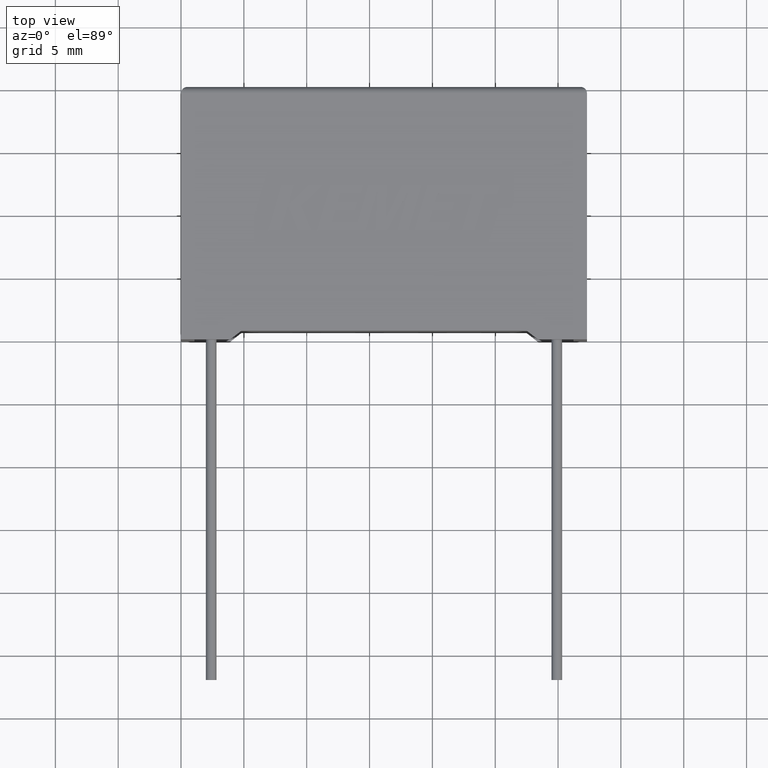
[diagram: clean part render]
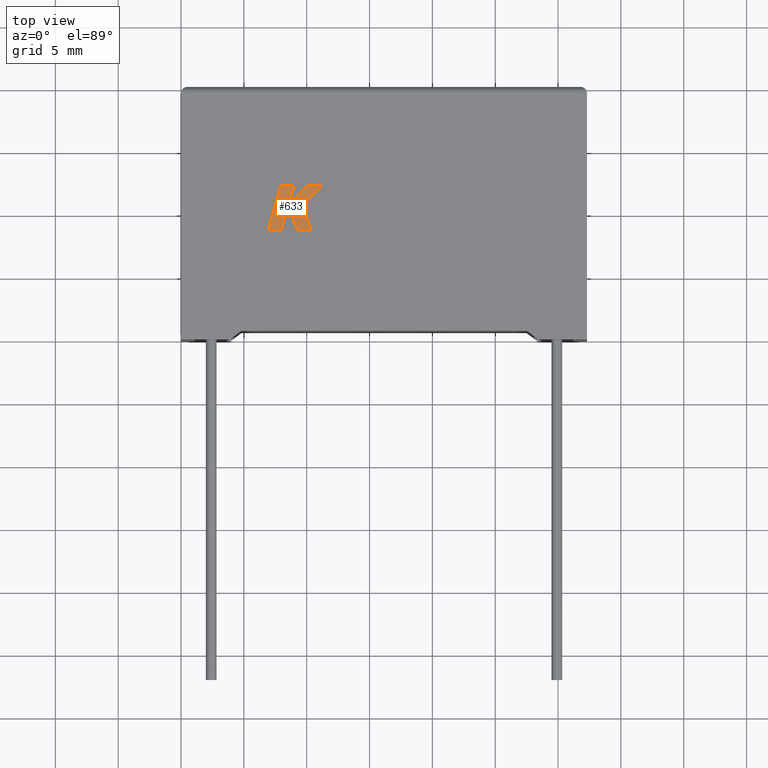
[diagram: same view with one face highlighted and labeled with its STEP entity id]
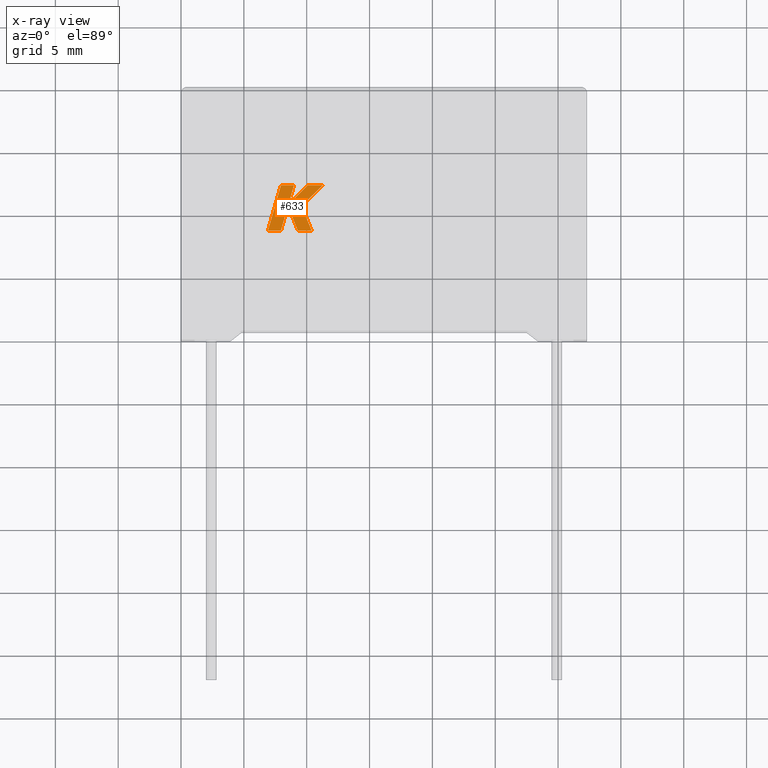
[diagram: x-ray of the same camera — body ghosted, the highlighted face saturated]
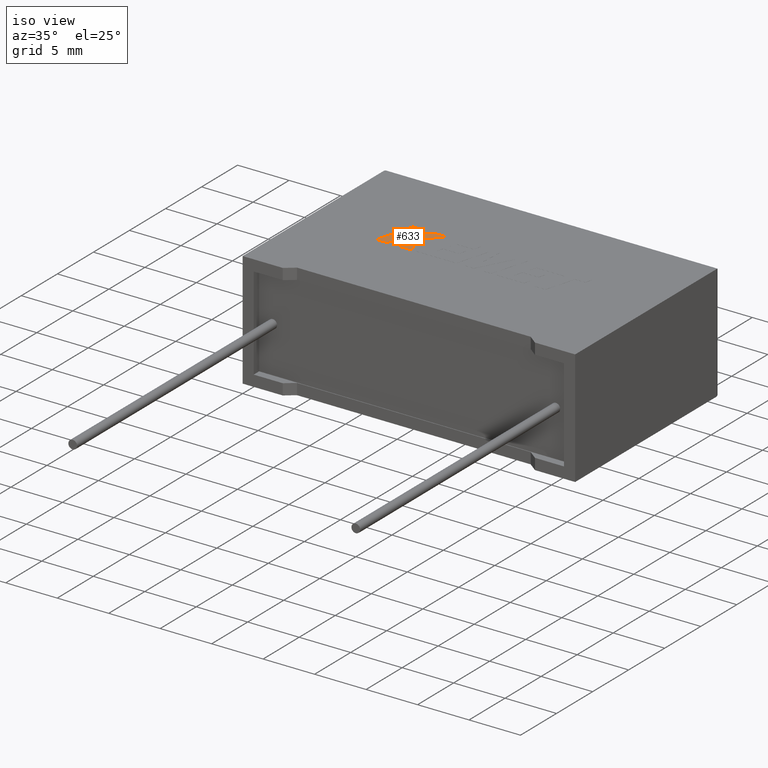
[diagram: same view with one face highlighted and labeled with its STEP entity id]
A machine part, top view. The second image highlights one B-rep face of the part: STEP entity #633.
The next image is the same camera in x-ray: the body ghosted, the highlighted face saturated — about 0% of this face is hidden behind the body in this view.
A second angle (iso view) of the same face is appended — the face is thin or edge-on in the first view.
In plain terms, the highlighted planar face has unit normal (0, 0, -1).
Its self-contained STEP definition (entity closure, byte-faithful):
#86 = VERTEX_POINT ( 'NONE', #2671 ) ;
#90 = VERTEX_POINT ( 'NONE', #1636 ) ;
#116 = LINE ( 'NONE', #376, #413 ) ;
#164 = CARTESIAN_POINT ( 'NONE',  ( 8.985275376180160500, 12.26690045535386600, 11.20500000000000000 ) ) ;
#170 = CARTESIAN_POINT ( 'NONE',  ( 6.915429999999998900, 8.649030000000001600, 11.20500000000000000 ) ) ;
#223 = VECTOR ( 'NONE', #1813, 1000.000000000000100 ) ;
#232 = VERTEX_POINT ( 'NONE', #1012 ) ;
#248 = CARTESIAN_POINT ( 'NONE',  ( 8.985275376180160500, 12.26690045535386600, 11.20500000000000000 ) ) ;
#270 = VERTEX_POINT ( 'NONE', #1665 ) ;
#307 = CARTESIAN_POINT ( 'NONE',  ( 10.39653108419111000, 8.649029999999891400, 11.20500000000000000 ) ) ;
#369 = CARTESIAN_POINT ( 'NONE',  ( 9.295731828754901100, 8.649029999999891400, 11.20500000000000000 ) ) ;
#372 = DIRECTION ( 'NONE',  ( 0.2755520632520602200, 0.9612861490927312500, 0.0000000000000000000 ) ) ;
#376 = CARTESIAN_POINT ( 'NONE',  ( 9.582273170698197600, 10.61343546668544500, 11.20500000000000000 ) ) ;
#381 = DIRECTION ( 'NONE',  ( 0.7145695586382624400, 0.6995643972269591800, 0.0000000000000000000 ) ) ;
#413 = VECTOR ( 'NONE', #2514, 1000.000000000000100 ) ;
#452 = CARTESIAN_POINT ( 'NONE',  ( 10.08059637653788300, 12.26690045535386600, 11.20500000000000000 ) ) ;
#462 = ORIENTED_EDGE ( 'NONE', *, *, #2598, .T. ) ;
#469 = LINE ( 'NONE', #164, #2965 ) ;
#518 = DIRECTION ( 'NONE',  ( 1.000000000000000000, -1.104435275910379500E-013, 0.0000000000000000000 ) ) ;
#519 = VERTEX_POINT ( 'NONE', #369 ) ;
#527 = ORIENTED_EDGE ( 'NONE', *, *, #2413, .T. ) ;
#537 = CARTESIAN_POINT ( 'NONE',  ( -0.3926869100054561400, -3.060840540429609300, 11.20499999999999700 ) ) ;
#576 = ORIENTED_EDGE ( 'NONE', *, *, #1629, .T. ) ;
#586 = ORIENTED_EDGE ( 'NONE', *, *, #756, .T. ) ;
#603 = LINE ( 'NONE', #1071, #223 ) ;
#614 = DIRECTION ( 'NONE',  ( -0.2762033010252005200, -0.9610992334315861000, -0.0000000000000000000 ) ) ;
#627 = CARTESIAN_POINT ( 'NONE',  ( 10.39653108419111000, 8.649029999999891400, 11.20500000000000000 ) ) ;
#633 = ADVANCED_FACE ( 'NONE', ( #1442 ), #1941, .F. ) ;
#663 = DIRECTION ( 'NONE',  ( -0.7059037656364501900, -0.7083077534943971200, -0.0000000000000000000 ) ) ;
#666 = VERTEX_POINT ( 'NONE', #248 ) ;
#756 = EDGE_CURVE ( 'NONE', #519, #2436, #2920, .T. ) ;
#761 = VECTOR ( 'NONE', #2809, 1000.000000000000000 ) ;
#793 = AXIS2_PLACEMENT_3D ( 'NONE', #537, #2430, #996 ) ;
#827 = LINE ( 'NONE', #1341, #761 ) ;
#996 = DIRECTION ( 'NONE',  ( -1.000000000000000000, 0.0000000000000000000, 0.0000000000000000000 ) ) ;
#1012 = CARTESIAN_POINT ( 'NONE',  ( 8.543032784463342500, 10.72410061949355300, 11.20500000000000000 ) ) ;
#1014 = ORIENTED_EDGE ( 'NONE', *, *, #2153, .T. ) ;
#1071 = CARTESIAN_POINT ( 'NONE',  ( 8.507226114336832600, 10.61343546668542000, 11.20500000000000000 ) ) ;
#1107 = DIRECTION ( 'NONE',  ( -1.000000000000000000, -0.0000000000000000000, -0.0000000000000000000 ) ) ;
#1192 = EDGE_CURVE ( 'NONE', #2529, #232, #2336, .T. ) ;
#1195 = CARTESIAN_POINT ( 'NONE',  ( 8.507226114336832600, 10.61343546668542000, 11.20500000000000000 ) ) ;
#1233 = CARTESIAN_POINT ( 'NONE',  ( 9.295731828754901100, 8.649029999999891400, 11.20500000000000000 ) ) ;
#1237 = DIRECTION ( 'NONE',  ( 1.000000000000000000, 0.0000000000000000000, 0.0000000000000000000 ) ) ;
#1341 = CARTESIAN_POINT ( 'NONE',  ( 7.955143411155697600, 12.26690045535386600, 11.20500000000000000 ) ) ;
#1428 = LINE ( 'NONE', #170, #2621 ) ;
#1442 = FACE_OUTER_BOUND ( 'NONE', #1680, .T. ) ;
#1501 = ORIENTED_EDGE ( 'NONE', *, *, #1940, .T. ) ;
#1544 = DIRECTION ( 'NONE',  ( 0.3725077383643967100, -0.9280290862137037200, 0.0000000000000000000 ) ) ;
#1580 = VERTEX_POINT ( 'NONE', #1195 ) ;
#1629 = EDGE_CURVE ( 'NONE', #90, #1580, #603, .T. ) ;
#1636 = CARTESIAN_POINT ( 'NONE',  ( 7.944186898093759600, 8.649029999999887900, 11.20500000000000000 ) ) ;
#1641 = ORIENTED_EDGE ( 'NONE', *, *, #2418, .T. ) ;
#1662 = EDGE_CURVE ( 'NONE', #666, #270, #827, .T. ) ;
#1665 = CARTESIAN_POINT ( 'NONE',  ( 7.955143411155697600, 12.26690045535386600, 11.20500000000000000 ) ) ;
#1680 = EDGE_LOOP ( 'NONE', ( #527, #1501, #576, #462, #586, #1641, #1014, #2591, #2853, #2593, #2886 ) ) ;
#1708 = VECTOR ( 'NONE', #1544, 1000.000000000000200 ) ;
#1720 = VECTOR ( 'NONE', #1237, 1000.000000000000000 ) ;
#1748 = VERTEX_POINT ( 'NONE', #3025 ) ;
#1760 = CARTESIAN_POINT ( 'NONE',  ( 11.27120381362412100, 12.26690045535386600, 11.20500000000000000 ) ) ;
#1813 = DIRECTION ( 'NONE',  ( 0.2755265765475025700, 0.9612934544747576700, 0.0000000000000000000 ) ) ;
#1830 = VECTOR ( 'NONE', #1107, 1000.000000000000000 ) ;
#1875 = LINE ( 'NONE', #1233, #1708 ) ;
#1934 = CARTESIAN_POINT ( 'NONE',  ( 7.944186898093759600, 8.649029999999887900, 11.20500000000000000 ) ) ;
#1940 = EDGE_CURVE ( 'NONE', #2550, #90, #2189, .T. ) ;
#1941 = PLANE ( 'NONE',  #793 ) ;
#2111 = EDGE_CURVE ( 'NONE', #232, #666, #469, .T. ) ;
#2153 = EDGE_CURVE ( 'NONE', #86, #1748, #2155, .T. ) ;
#2155 = LINE ( 'NONE', #1760, #2674 ) ;
#2189 = LINE ( 'NONE', #1934, #2380 ) ;
#2304 = CARTESIAN_POINT ( 'NONE',  ( 8.543032784463342500, 10.72410061949355300, 11.20500000000000000 ) ) ;
#2336 = LINE ( 'NONE', #2304, #2520 ) ;
#2380 = VECTOR ( 'NONE', #518, 1000.000000000000000 ) ;
#2413 = EDGE_CURVE ( 'NONE', #270, #2550, #1428, .T. ) ;
#2418 = EDGE_CURVE ( 'NONE', #2436, #86, #116, .T. ) ;
#2430 = DIRECTION ( 'NONE',  ( 0.0000000000000000000, 0.0000000000000000000, -1.000000000000000000 ) ) ;
#2436 = VERTEX_POINT ( 'NONE', #627 ) ;
#2514 = DIRECTION ( 'NONE',  ( -0.3829140317376763500, 0.9237839814038765200, 0.0000000000000000000 ) ) ;
#2520 = VECTOR ( 'NONE', #663, 1000.000000000000100 ) ;
#2529 = VERTEX_POINT ( 'NONE', #452 ) ;
#2550 = VERTEX_POINT ( 'NONE', #2782 ) ;
#2591 = ORIENTED_EDGE ( 'NONE', *, *, #3032, .T. ) ;
#2593 = ORIENTED_EDGE ( 'NONE', *, *, #2111, .T. ) ;
#2598 = EDGE_CURVE ( 'NONE', #1580, #519, #1875, .T. ) ;
#2621 = VECTOR ( 'NONE', #614, 1000.000000000000200 ) ;
#2671 = CARTESIAN_POINT ( 'NONE',  ( 9.582273170698197600, 10.61343546668544500, 11.20500000000000000 ) ) ;
#2674 = VECTOR ( 'NONE', #381, 1000.000000000000100 ) ;
#2782 = CARTESIAN_POINT ( 'NONE',  ( 6.915429999999998900, 8.649030000000001600, 11.20500000000000000 ) ) ;
#2809 = DIRECTION ( 'NONE',  ( -1.000000000000000000, -0.0000000000000000000, -0.0000000000000000000 ) ) ;
#2853 = ORIENTED_EDGE ( 'NONE', *, *, #1192, .T. ) ;
#2873 = LINE ( 'NONE', #3034, #1830 ) ;
#2886 = ORIENTED_EDGE ( 'NONE', *, *, #1662, .T. ) ;
#2920 = LINE ( 'NONE', #307, #1720 ) ;
#2965 = VECTOR ( 'NONE', #372, 1000.000000000000000 ) ;
#3025 = CARTESIAN_POINT ( 'NONE',  ( 11.27120381362412100, 12.26690045535386600, 11.20500000000000000 ) ) ;
#3032 = EDGE_CURVE ( 'NONE', #1748, #2529, #2873, .T. ) ;
#3034 = CARTESIAN_POINT ( 'NONE',  ( 10.08059637653788300, 12.26690045535386600, 11.20500000000000000 ) ) ;